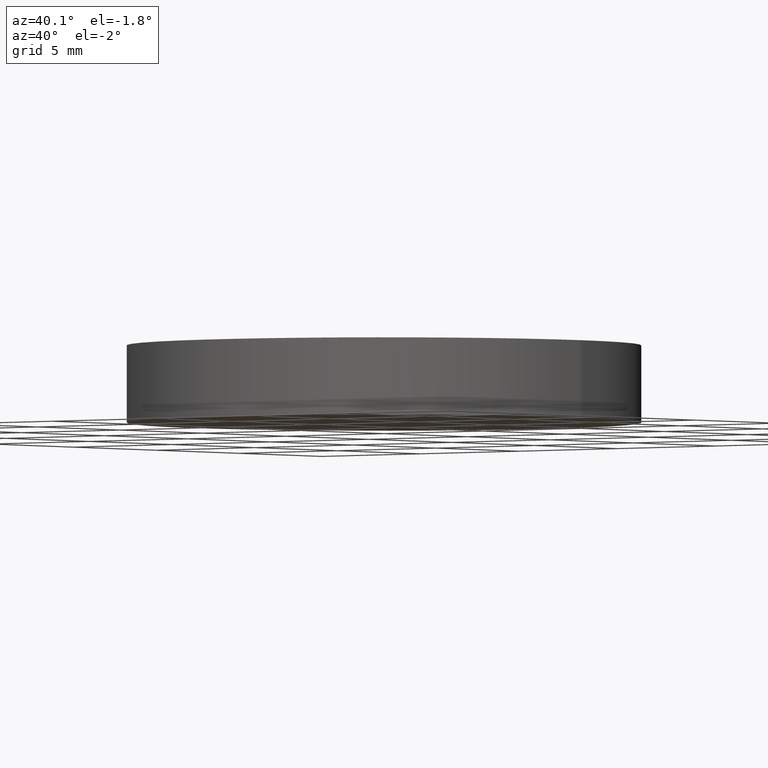
[diagram: clean part render]
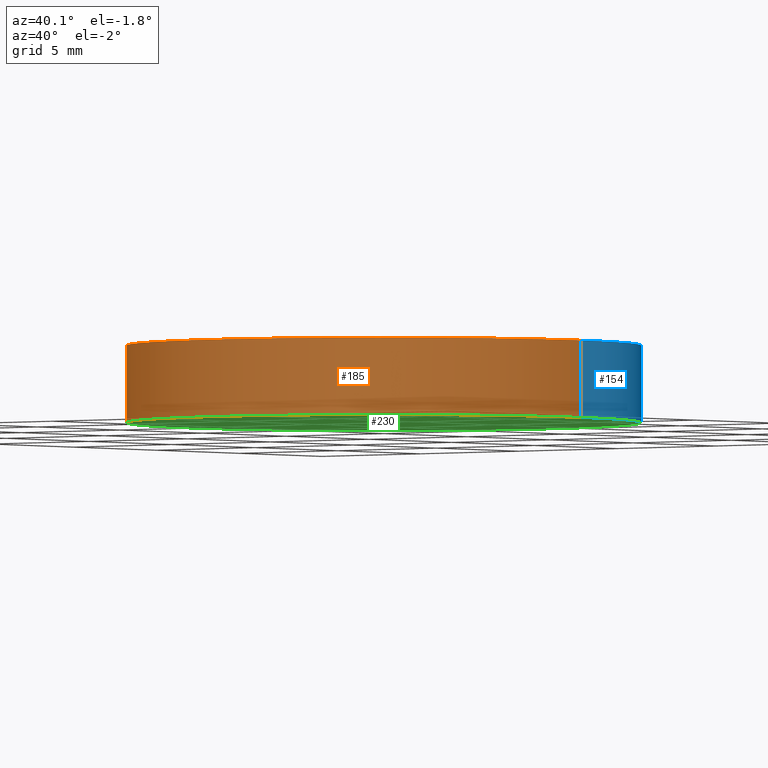
[diagram: same view with three faces highlighted in distinct colors, each labeled with its STEP entity id]
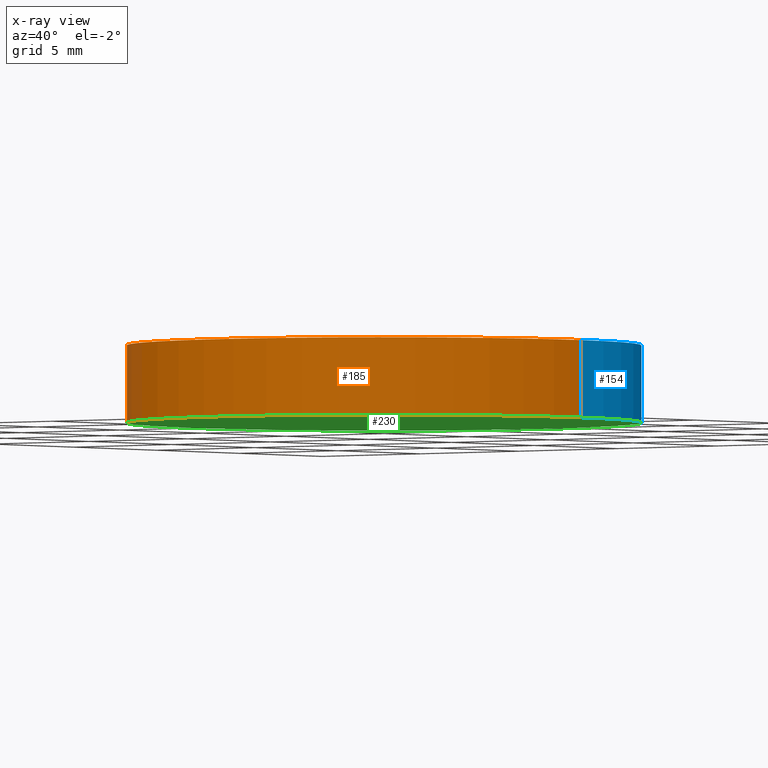
[diagram: x-ray of the same camera — body ghosted, the three highlighted faces saturated]
A machine part, auxiliary view with three faces highlighted in distinct colors.
The next image is the same camera in x-ray (body ghosted, the three faces saturated) — at least one of them is partly hidden behind the body in this view.
Their STEP definitions:

[orange] entity #185 — the highlighted cylindrical surface (partial cylindrical patch) has radius 10 mm, axis along (-0, -0, -1).
#2 = CARTESIAN_POINT ( 'NONE',  ( 10.00000000000000000, 1.224646799147353300E-015, 0.0000000000000000000 ) ) ;
#5 = DIRECTION ( 'NONE',  ( 1.000000000000000000, 0.0000000000000000000, 0.0000000000000000000 ) ) ;
#6 = DIRECTION ( 'NONE',  ( -0.0000000000000000000, -0.0000000000000000000, -1.000000000000000000 ) ) ;
#16 = CIRCLE ( 'NONE', #181, 10.00000000000000000 ) ;
#21 = CARTESIAN_POINT ( 'NONE',  ( -10.00000000000000000, 0.0000000000000000000, 0.0000000000000000000 ) ) ;
#24 = CARTESIAN_POINT ( 'NONE',  ( 0.0000000000000000000, 0.0000000000000000000, 3.000000000000000000 ) ) ;
#36 = EDGE_CURVE ( 'NONE', #213, #251, #222, .T. ) ;
#38 = CARTESIAN_POINT ( 'NONE',  ( 0.0000000000000000000, 0.0000000000000000000, 0.0000000000000000000 ) ) ;
#47 = AXIS2_PLACEMENT_3D ( 'NONE', #38, #119, #139 ) ;
#51 = CIRCLE ( 'NONE', #47, 10.00000000000000000 ) ;
#55 = AXIS2_PLACEMENT_3D ( 'NONE', #24, #158, #115 ) ;
#67 = EDGE_CURVE ( 'NONE', #213, #126, #16, .T. ) ;
#82 = CARTESIAN_POINT ( 'NONE',  ( -10.00000000000000000, 0.0000000000000000000, 3.000000000000000000 ) ) ;
#90 = VECTOR ( 'NONE', #6, 1000.000000000000000 ) ;
#93 = VERTEX_POINT ( 'NONE', #2 ) ;
#95 = DIRECTION ( 'NONE',  ( 0.0000000000000000000, 0.0000000000000000000, 1.000000000000000000 ) ) ;
#105 = FACE_OUTER_BOUND ( 'NONE', #166, .T. ) ;
#106 = CARTESIAN_POINT ( 'NONE',  ( 10.00000000000000000, 1.224646799147353300E-015, 3.000000000000000000 ) ) ;
#114 = VECTOR ( 'NONE', #176, 1000.000000000000000 ) ;
#115 = DIRECTION ( 'NONE',  ( -1.000000000000000000, 0.0000000000000000000, 0.0000000000000000000 ) ) ;
#119 = DIRECTION ( 'NONE',  ( 0.0000000000000000000, 0.0000000000000000000, 1.000000000000000000 ) ) ;
#126 = VERTEX_POINT ( 'NONE', #239 ) ;
#136 = CARTESIAN_POINT ( 'NONE',  ( 0.0000000000000000000, 0.0000000000000000000, 3.000000000000000000 ) ) ;
#139 = DIRECTION ( 'NONE',  ( 1.000000000000000000, 0.0000000000000000000, 0.0000000000000000000 ) ) ;
#156 = EDGE_CURVE ( 'NONE', #251, #93, #51, .T. ) ;
#158 = DIRECTION ( 'NONE',  ( -0.0000000000000000000, -0.0000000000000000000, -1.000000000000000000 ) ) ;
#166 = EDGE_LOOP ( 'NONE', ( #238, #208, #235, #232 ) ) ;
#176 = DIRECTION ( 'NONE',  ( -0.0000000000000000000, -0.0000000000000000000, -1.000000000000000000 ) ) ;
#181 = AXIS2_PLACEMENT_3D ( 'NONE', #136, #95, #5 ) ;
#185 = ADVANCED_FACE ( 'NONE', ( #105 ), #189, .T. ) ;
#186 = EDGE_CURVE ( 'NONE', #126, #93, #252, .T. ) ;
#189 = CYLINDRICAL_SURFACE ( 'NONE', #55, 10.00000000000000000 ) ;
#191 = CARTESIAN_POINT ( 'NONE',  ( -10.00000000000000000, 0.0000000000000000000, 3.000000000000000000 ) ) ;
#208 = ORIENTED_EDGE ( 'NONE', *, *, #67, .F. ) ;
#213 = VERTEX_POINT ( 'NONE', #82 ) ;
#222 = LINE ( 'NONE', #191, #114 ) ;
#232 = ORIENTED_EDGE ( 'NONE', *, *, #156, .T. ) ;
#235 = ORIENTED_EDGE ( 'NONE', *, *, #36, .T. ) ;
#238 = ORIENTED_EDGE ( 'NONE', *, *, #186, .F. ) ;
#239 = CARTESIAN_POINT ( 'NONE',  ( 10.00000000000000000, 1.224646799147353300E-015, 3.000000000000000000 ) ) ;
#251 = VERTEX_POINT ( 'NONE', #21 ) ;
#252 = LINE ( 'NONE', #106, #90 ) ;

[blue] entity #154 — the highlighted cylindrical surface (partial cylindrical patch) has radius 10 mm, axis along (-0, -0, -1).
#2 = CARTESIAN_POINT ( 'NONE',  ( 10.00000000000000000, 1.224646799147353300E-015, 0.0000000000000000000 ) ) ;
#6 = DIRECTION ( 'NONE',  ( -0.0000000000000000000, -0.0000000000000000000, -1.000000000000000000 ) ) ;
#11 = EDGE_LOOP ( 'NONE', ( #203, #20, #157, #44 ) ) ;
#17 = EDGE_CURVE ( 'NONE', #126, #213, #64, .T. ) ;
#20 = ORIENTED_EDGE ( 'NONE', *, *, #186, .T. ) ;
#21 = CARTESIAN_POINT ( 'NONE',  ( -10.00000000000000000, 0.0000000000000000000, 0.0000000000000000000 ) ) ;
#23 = CYLINDRICAL_SURFACE ( 'NONE', #162, 10.00000000000000000 ) ;
#36 = EDGE_CURVE ( 'NONE', #213, #251, #222, .T. ) ;
#44 = ORIENTED_EDGE ( 'NONE', *, *, #36, .F. ) ;
#54 = CARTESIAN_POINT ( 'NONE',  ( 0.0000000000000000000, 0.0000000000000000000, 3.000000000000000000 ) ) ;
#57 = DIRECTION ( 'NONE',  ( 1.000000000000000000, 0.0000000000000000000, 0.0000000000000000000 ) ) ;
#64 = CIRCLE ( 'NONE', #138, 10.00000000000000000 ) ;
#75 = DIRECTION ( 'NONE',  ( 0.0000000000000000000, 0.0000000000000000000, 1.000000000000000000 ) ) ;
#78 = DIRECTION ( 'NONE',  ( -0.0000000000000000000, -0.0000000000000000000, -1.000000000000000000 ) ) ;
#82 = CARTESIAN_POINT ( 'NONE',  ( -10.00000000000000000, 0.0000000000000000000, 3.000000000000000000 ) ) ;
#90 = VECTOR ( 'NONE', #6, 1000.000000000000000 ) ;
#93 = VERTEX_POINT ( 'NONE', #2 ) ;
#96 = FACE_OUTER_BOUND ( 'NONE', #11, .T. ) ;
#98 = CARTESIAN_POINT ( 'NONE',  ( 0.0000000000000000000, 0.0000000000000000000, 3.000000000000000000 ) ) ;
#106 = CARTESIAN_POINT ( 'NONE',  ( 10.00000000000000000, 1.224646799147353300E-015, 3.000000000000000000 ) ) ;
#114 = VECTOR ( 'NONE', #176, 1000.000000000000000 ) ;
#120 = DIRECTION ( 'NONE',  ( 1.000000000000000000, 0.0000000000000000000, 0.0000000000000000000 ) ) ;
#126 = VERTEX_POINT ( 'NONE', #239 ) ;
#138 = AXIS2_PLACEMENT_3D ( 'NONE', #54, #177, #57 ) ;
#150 = EDGE_CURVE ( 'NONE', #93, #251, #152, .T. ) ;
#152 = CIRCLE ( 'NONE', #223, 10.00000000000000000 ) ;
#154 = ADVANCED_FACE ( 'NONE', ( #96 ), #23, .T. ) ;
#157 = ORIENTED_EDGE ( 'NONE', *, *, #150, .T. ) ;
#162 = AXIS2_PLACEMENT_3D ( 'NONE', #98, #78, #212 ) ;
#176 = DIRECTION ( 'NONE',  ( -0.0000000000000000000, -0.0000000000000000000, -1.000000000000000000 ) ) ;
#177 = DIRECTION ( 'NONE',  ( 0.0000000000000000000, 0.0000000000000000000, 1.000000000000000000 ) ) ;
#186 = EDGE_CURVE ( 'NONE', #126, #93, #252, .T. ) ;
#191 = CARTESIAN_POINT ( 'NONE',  ( -10.00000000000000000, 0.0000000000000000000, 3.000000000000000000 ) ) ;
#203 = ORIENTED_EDGE ( 'NONE', *, *, #17, .F. ) ;
#212 = DIRECTION ( 'NONE',  ( -1.000000000000000000, 0.0000000000000000000, 0.0000000000000000000 ) ) ;
#213 = VERTEX_POINT ( 'NONE', #82 ) ;
#215 = CARTESIAN_POINT ( 'NONE',  ( 0.0000000000000000000, 0.0000000000000000000, 0.0000000000000000000 ) ) ;
#222 = LINE ( 'NONE', #191, #114 ) ;
#223 = AXIS2_PLACEMENT_3D ( 'NONE', #215, #75, #120 ) ;
#239 = CARTESIAN_POINT ( 'NONE',  ( 10.00000000000000000, 1.224646799147353300E-015, 3.000000000000000000 ) ) ;
#251 = VERTEX_POINT ( 'NONE', #21 ) ;
#252 = LINE ( 'NONE', #106, #90 ) ;

[green] entity #230 — the highlighted planar face has unit normal (0, 0, 1).
#2 = CARTESIAN_POINT ( 'NONE',  ( 10.00000000000000000, 1.224646799147353300E-015, 0.0000000000000000000 ) ) ;
#21 = CARTESIAN_POINT ( 'NONE',  ( -10.00000000000000000, 0.0000000000000000000, 0.0000000000000000000 ) ) ;
#25 = CARTESIAN_POINT ( 'NONE',  ( 0.0000000000000000000, 0.0000000000000000000, 0.0000000000000000000 ) ) ;
#30 = ORIENTED_EDGE ( 'NONE', *, *, #150, .F. ) ;
#38 = CARTESIAN_POINT ( 'NONE',  ( 0.0000000000000000000, 0.0000000000000000000, 0.0000000000000000000 ) ) ;
#47 = AXIS2_PLACEMENT_3D ( 'NONE', #38, #119, #139 ) ;
#51 = CIRCLE ( 'NONE', #47, 10.00000000000000000 ) ;
#68 = ORIENTED_EDGE ( 'NONE', *, *, #156, .F. ) ;
#72 = FACE_OUTER_BOUND ( 'NONE', #170, .T. ) ;
#75 = DIRECTION ( 'NONE',  ( 0.0000000000000000000, 0.0000000000000000000, 1.000000000000000000 ) ) ;
#93 = VERTEX_POINT ( 'NONE', #2 ) ;
#119 = DIRECTION ( 'NONE',  ( 0.0000000000000000000, 0.0000000000000000000, 1.000000000000000000 ) ) ;
#120 = DIRECTION ( 'NONE',  ( 1.000000000000000000, 0.0000000000000000000, 0.0000000000000000000 ) ) ;
#124 = DIRECTION ( 'NONE',  ( 0.0000000000000000000, 0.0000000000000000000, 1.000000000000000000 ) ) ;
#139 = DIRECTION ( 'NONE',  ( 1.000000000000000000, 0.0000000000000000000, 0.0000000000000000000 ) ) ;
#150 = EDGE_CURVE ( 'NONE', #93, #251, #152, .T. ) ;
#152 = CIRCLE ( 'NONE', #223, 10.00000000000000000 ) ;
#156 = EDGE_CURVE ( 'NONE', #251, #93, #51, .T. ) ;
#170 = EDGE_LOOP ( 'NONE', ( #68, #30 ) ) ;
#192 = PLANE ( 'NONE',  #236 ) ;
#215 = CARTESIAN_POINT ( 'NONE',  ( 0.0000000000000000000, 0.0000000000000000000, 0.0000000000000000000 ) ) ;
#221 = DIRECTION ( 'NONE',  ( 1.000000000000000000, 0.0000000000000000000, -0.0000000000000000000 ) ) ;
#223 = AXIS2_PLACEMENT_3D ( 'NONE', #215, #75, #120 ) ;
#230 = ADVANCED_FACE ( 'NONE', ( #72 ), #192, .F. ) ;
#236 = AXIS2_PLACEMENT_3D ( 'NONE', #25, #124, #221 ) ;
#251 = VERTEX_POINT ( 'NONE', #21 ) ;